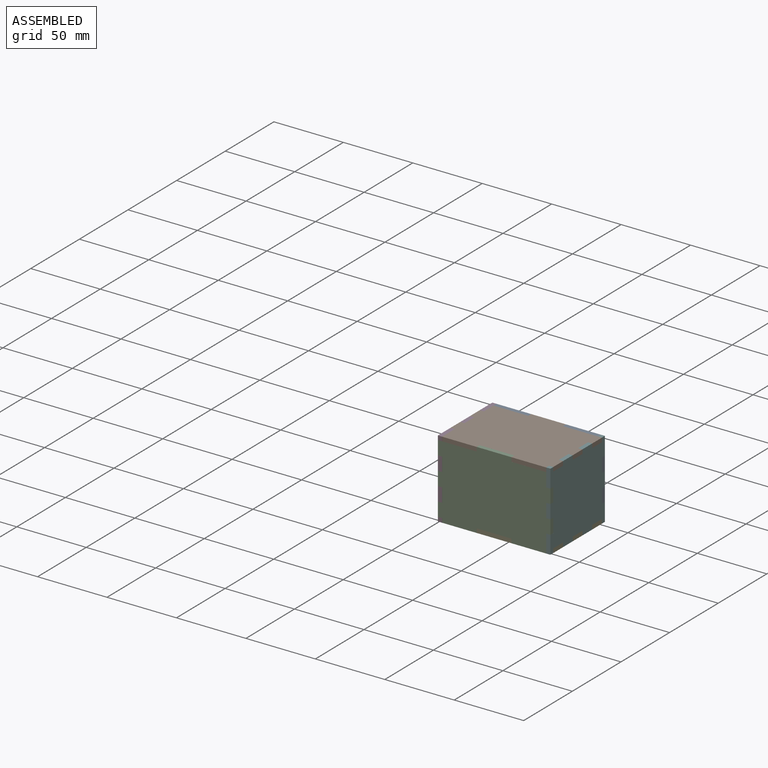
[diagram: assembled view]
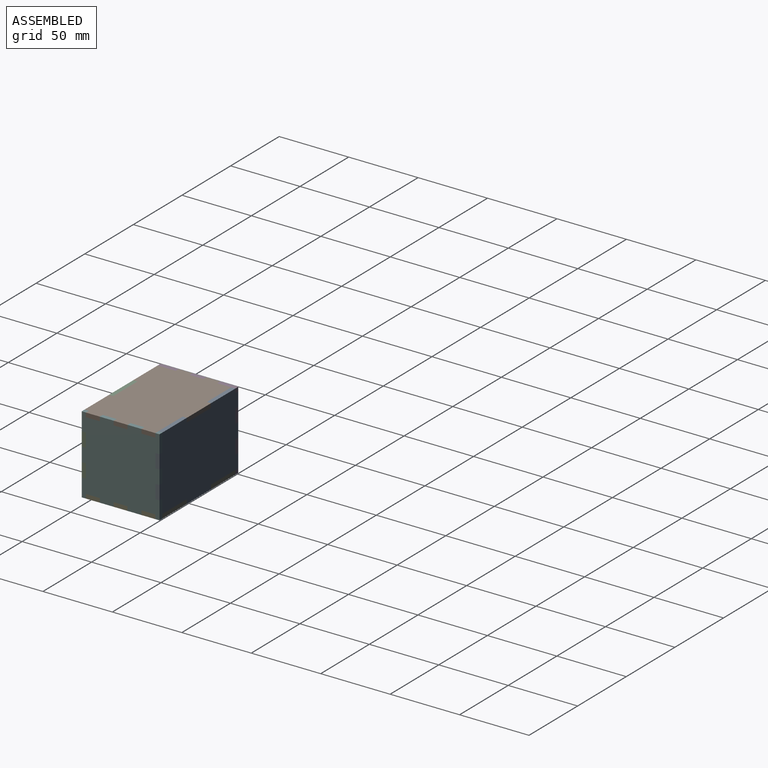
[diagram: assembled view, second angle]
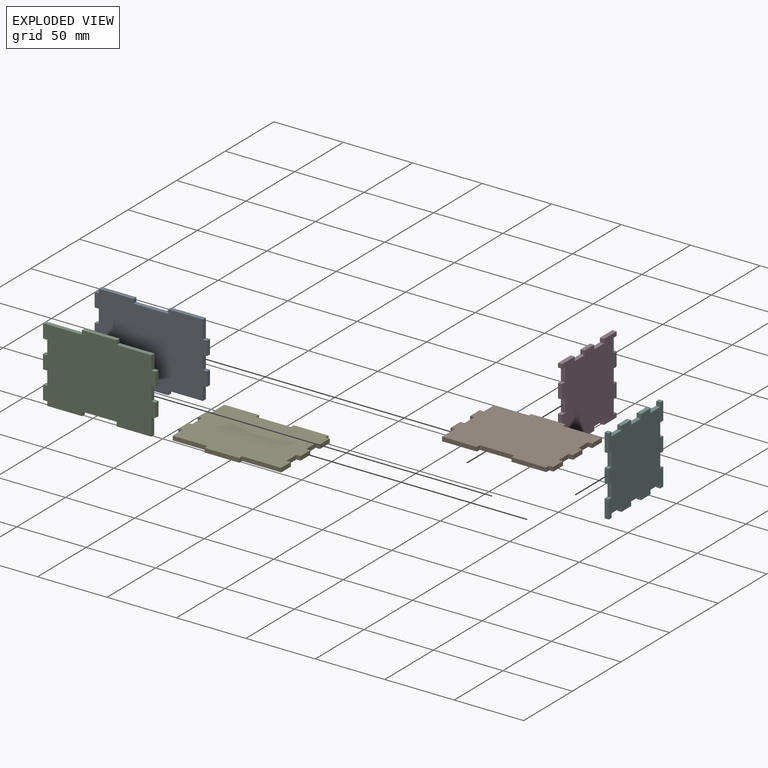
[diagram: exploded view]
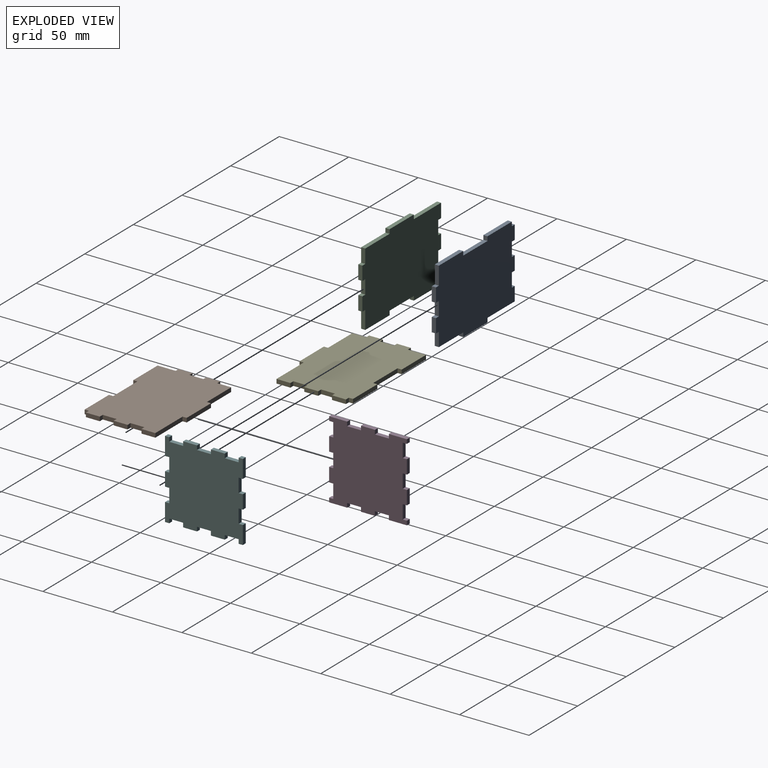
[diagram: exploded view, second angle]
ASSEMBLY  parts=6 mates=5
PART A: 32 faces, bbox 81x56x3 mm
  f0: plane 3x3mm, normal (-1,0,0), area 9mm2, adj f1,f29,f30,f31
  f1: plane 25x3mm, normal (0,1,0), area 75mm2, adj f0,f2,f30,f31
  f2: plane 3x3mm, normal (1,0,0), area 9mm2, adj f1,f3,f30,f31
  f3: plane 25x3mm, normal (0,1,0), area 75mm2, adj f2,f4,f30,f31
  f4: plane 13x3mm, normal (-1,0,0), area 39mm2, adj f3,f5,f30,f31
  f5: plane 3x3mm, normal (0,1,0), area 9mm2, adj f4,f6,f30,f31
  f6: plane 10x3mm, normal (-1,0,0), area 30mm2, adj f5,f7,f30,f31
  f7: plane 3x3mm, normal (0,-1,0), area 9mm2, adj f6,f8,f30,f31
  f8: plane 10x3mm, normal (-1,0,0), area 30mm2, adj f7,f9,f30,f31
  f9: plane 3x3mm, normal (0,1,0), area 9mm2, adj f8,f10,f30,f31
  f10: plane 10x3mm, normal (-1,0,0), area 30mm2, adj f9,f11,f30,f31
  f11: plane 3x3mm, normal (0,-1,0), area 9mm2, adj f10,f12,f30,f31
  f12: plane 10x3mm, normal (-1,0,0), area 30mm2, adj f11,f13,f30,f31
  f13: plane 25x3mm, normal (0,-1,0), area 75mm2, adj f12,f14,f30,f31
  f14: plane 3x3mm, normal (-1,0,0), area 9mm2, adj f13,f15,f30,f31
  f15: plane 25x3mm, normal (0,-1,0), area 75mm2, adj f14,f16,f30,f31
  f16: plane 3x3mm, normal (1,0,0), area 9mm2, adj f15,f17,f30,f31
  f17: plane 28x3mm, normal (0,-1,0), area 84mm2, adj f16,f18,f30,f31
  f18: plane 10x3mm, normal (1,0,0), area 30mm2, adj f17,f19,f30,f31
  f19: plane 3x3mm, normal (0,1,0), area 9mm2, adj f18,f20,f30,f31
  f20: plane 10x3mm, normal (1,0,0), area 30mm2, adj f19,f21,f30,f31
  f21: plane 3x3mm, normal (0,-1,0), area 9mm2, adj f20,f22,f30,f31
  f22: plane 10x3mm, normal (1,0,0), area 30mm2, adj f21,f23,f30,f31
  f23: plane 3x3mm, normal (0,1,0), area 9mm2, adj f22,f24,f30,f31
  f24: plane 10x3mm, normal (1,0,0), area 30mm2, adj f23,f25,f30,f31
  f25: plane 3x3mm, normal (0,-1,0), area 9mm2, adj f24,f26,f30,f31
  f26: plane 10x3mm, normal (1,0,0), area 30mm2, adj f25,f27,f30,f31
  f27: plane 3x3mm, normal (0,1,0), area 9mm2, adj f26,f28,f30,f31
  f28: plane 3x3mm, normal (1,0,0), area 9mm2, adj f27,f29,f30,f31
  f29: plane 25x3mm, normal (0,1,0), area 75mm2, adj f0,f28,f30,f31
  f30: plane 81x56mm, normal (0,0,1), area 4125mm2, adj f0,f1,f2,f3,f4,f5,f6,f7
  f31: plane 81x56mm, normal (0,0,-1), area 4125mm2, adj f0,f1,f2,f3,f4,f5,f6,f7
PART B: same geometry as A
PART C: same geometry as A
PART D: 46 faces, bbox 3x56x56 mm
  f0: plane 3x3mm, normal (0,1,0), area 9mm2, adj f1,f43,f44,f45
  f1: plane 10x3mm, normal (0,0,-1), area 30mm2, adj f0,f2,f44,f45
  f2: plane 3x3mm, normal (0,-1,0), area 9mm2, adj f1,f3,f44,f45
  f3: plane 10x3mm, normal (0,0,-1), area 30mm2, adj f2,f4,f44,f45
  f4: plane 3x3mm, normal (0,1,0), area 9mm2, adj f3,f5,f44,f45
  f5: plane 10x3mm, normal (0,0,-1), area 30mm2, adj f4,f6,f44,f45
  f6: plane 3x3mm, normal (0,-1,0), area 9mm2, adj f5,f7,f44,f45
  f7: plane 10x3mm, normal (0,0,-1), area 30mm2, adj f6,f8,f44,f45
  f8: plane 3x3mm, normal (0,1,0), area 9mm2, adj f7,f9,f44,f45
  f9: plane 10x3mm, normal (0,0,-1), area 30mm2, adj f8,f10,f44,f45
  f10: plane 3x3mm, normal (0,-1,0), area 9mm2, adj f9,f11,f44,f45
  f11: plane 3x3mm, normal (0,0,-1), area 9mm2, adj f10,f12,f44,f45
  f12: plane 13x3mm, normal (0,1,0), area 39mm2, adj f11,f13,f44,f45
  f13: plane 3x3mm, normal (0,0,1), area 9mm2, adj f12,f14,f44,f45
  f14: plane 10x3mm, normal (0,1,0), area 30mm2, adj f13,f15,f44,f45
  f15: plane 3x3mm, normal (0,0,-1), area 9mm2, adj f14,f16,f44,f45
  f16: plane 10x3mm, normal (0,1,0), area 30mm2, adj f15,f17,f44,f45
  f17: plane 3x3mm, normal (0,0,1), area 9mm2, adj f16,f18,f44,f45
  f18: plane 10x3mm, normal (0,1,0), area 30mm2, adj f17,f19,f44,f45
  f19: plane 3x3mm, normal (0,0,-1), area 9mm2, adj f18,f20,f44,f45
  f20: plane 13x3mm, normal (0,1,0), area 39mm2, adj f19,f21,f44,f45
  f21: plane 3x3mm, normal (0,0,1), area 9mm2, adj f20,f22,f44,f45
  f22: plane 3x3mm, normal (0,-1,0), area 9mm2, adj f21,f23,f44,f45
  f23: plane 10x3mm, normal (0,0,1), area 30mm2, adj f22,f24,f44,f45
  f24: plane 3x3mm, normal (0,1,0), area 9mm2, adj f23,f25,f44,f45
  f25: plane 10x3mm, normal (0,0,1), area 30mm2, adj f24,f26,f44,f45
  f26: plane 3x3mm, normal (0,-1,0), area 9mm2, adj f25,f27,f44,f45
  f27: plane 10x3mm, normal (0,0,1), area 30mm2, adj f26,f28,f44,f45
  f28: plane 3x3mm, normal (0,1,0), area 9mm2, adj f27,f29,f44,f45
  f29: plane 10x3mm, normal (0,0,1), area 30mm2, adj f28,f30,f44,f45
  f30: plane 3x3mm, normal (0,-1,0), area 9mm2, adj f29,f31,f44,f45
  f31: plane 10x3mm, normal (0,0,1), area 30mm2, adj f30,f32,f44,f45
  f32: plane 3x3mm, normal (0,1,0), area 9mm2, adj f31,f33,f44,f45
  f33: plane 3x3mm, normal (0,0,1), area 9mm2, adj f32,f34,f44,f45
  f34: plane 13x3mm, normal (0,-1,0), area 39mm2, adj f33,f35,f44,f45
  f35: plane 3x3mm, normal (0,0,-1), area 9mm2, adj f34,f36,f44,f45
  f36: plane 10x3mm, normal (0,-1,0), area 30mm2, adj f35,f37,f44,f45
  f37: plane 3x3mm, normal (0,0,1), area 9mm2, adj f36,f38,f44,f45
  f38: plane 10x3mm, normal (0,-1,0), area 30mm2, adj f37,f39,f44,f45
  f39: plane 3x3mm, normal (0,0,-1), area 9mm2, adj f38,f40,f44,f45
  f40: plane 10x3mm, normal (0,-1,0), area 30mm2, adj f39,f41,f44,f45
  f41: plane 3x3mm, normal (0,0,1), area 9mm2, adj f40,f42,f44,f45
  f42: plane 13x3mm, normal (0,-1,0), area 39mm2, adj f41,f43,f44,f45
  f43: plane 3x3mm, normal (0,0,-1), area 9mm2, adj f0,f42,f44,f45
  f44: plane 56x56mm, normal (-1,0,0), area 2836mm2, adj f0,f1,f2,f3,f4,f5,f6,f7
  f45: plane 56x56mm, normal (1,0,0), area 2836mm2, adj f0,f1,f2,f3,f4,f5,f6,f7
PART E: same geometry as A
PART F: same geometry as D
PLACE A rot(axis=(0,-0.71,-0.71),180deg) t=(-8.19,-1.44,26.19)mm
PLACE B rot(axis=(-1,0,0),180deg) t=(-8.19,-26.44,54.19)mm
PLACE C rot(axis=(0,-0.71,0.71),180deg) t=(-8.19,-51.44,26.19)mm
PLACE D rot(axis=(-1,0,0),90deg) t=(-86.19,-1.44,26.19)mm
PLACE E t=(-8.19,-26.44,-1.81)mm
PLACE F rot(axis=(0.16,0.01,-0.99),0deg) t=(-8.19,-26.44,51.19)mm
MATE fastened A.f2 <-> B.f16  axis (-1,0,0) through (4.31,0.06,52.69)mm
MATE fastened A.f14 <-> E.f0  axis (1,0,0) through (4.31,0.06,-0.31)mm
MATE fastened D.f37 <-> B.f9  axis (0,1,0) through (-47.19,-21.44,52.69)mm
MATE fastened B.f0 <-> C.f14  axis (-1,0,0) through (4.31,-52.94,52.69)mm
MATE fastened F.f24 <-> B.f19  axis (0,1,0) through (30.81,-11.44,52.69)mm
